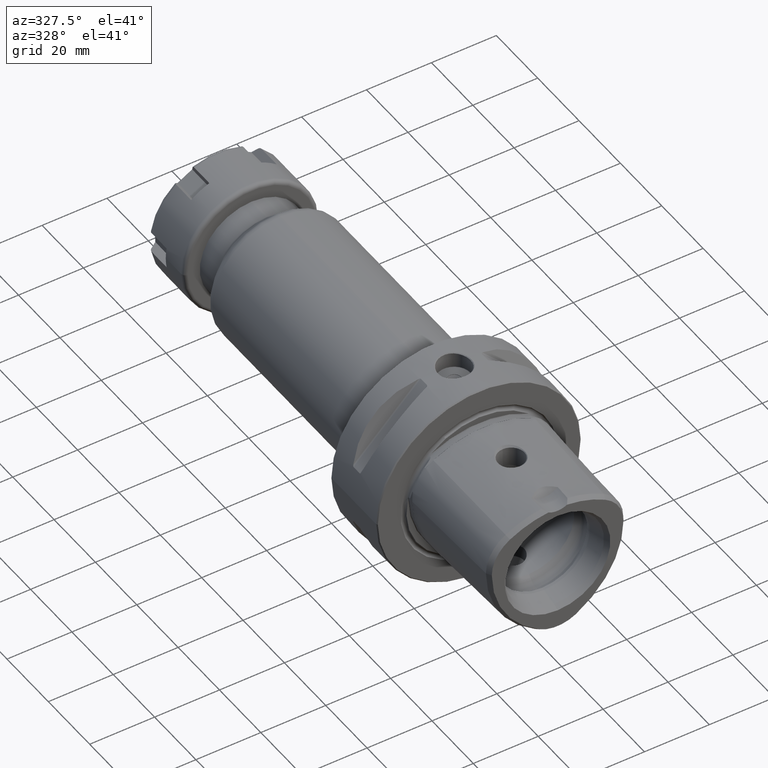
[diagram: clean part render]
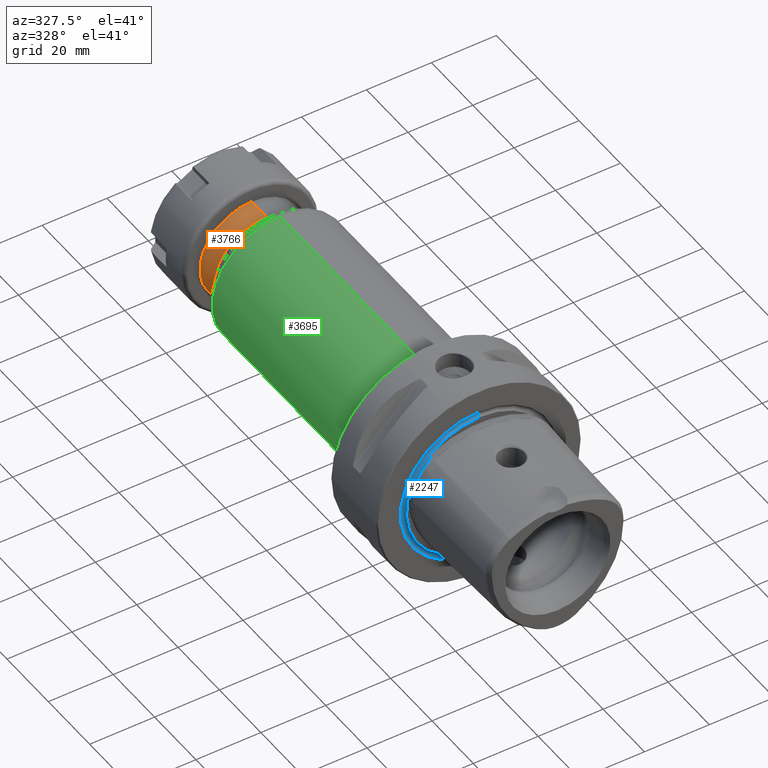
[diagram: same view with three faces highlighted in distinct colors, each labeled with its STEP entity id]
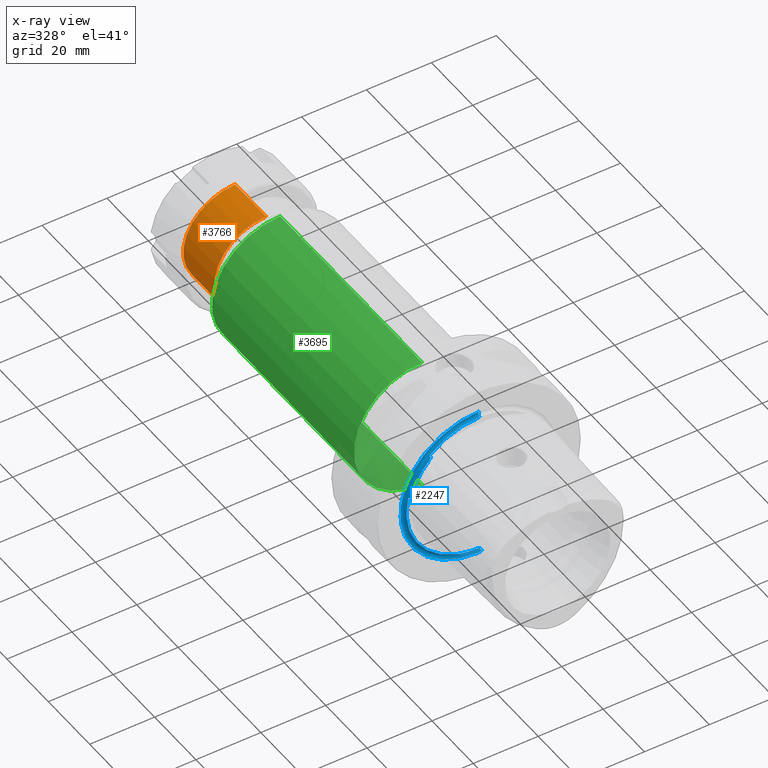
[diagram: x-ray of the same camera — body ghosted, the three highlighted faces saturated]
A machine part, auxiliary view with three faces highlighted in distinct colors.
The next image is the same camera in x-ray (body ghosted, the three faces saturated) — at least one of them is partly hidden behind the body in this view.
Their STEP definitions:

[orange] entity #3766 — the highlighted cylindrical surface (partial cylindrical patch) has radius 16 mm, axis along (0, 1, 0).
#1685=CARTESIAN_POINT('',(0.E0,1.029142135624E2,0.E0));
#1686=DIRECTION('',(0.E0,1.E0,0.E0));
#1687=DIRECTION('',(0.E0,0.E0,-1.E0));
#1688=AXIS2_PLACEMENT_3D('',#1685,#1686,#1687);
#1690=DIRECTION('',(3.382933303981E-13,-1.E0,0.E0));
#1691=VECTOR('',#1690,1.508578643763E1);
#1692=CARTESIAN_POINT('',(0.E0,1.18E2,-1.6E1));
#1693=LINE('',#1692,#1691);
#1694=CARTESIAN_POINT('',(0.E0,1.18E2,0.E0));
#1695=DIRECTION('',(0.E0,-1.E0,0.E0));
#1696=DIRECTION('',(0.E0,0.E0,1.E0));
#1697=AXIS2_PLACEMENT_3D('',#1694,#1695,#1696);
#1699=DIRECTION('',(-3.384444722266E-13,-1.E0,0.E0));
#1700=VECTOR('',#1699,1.508578643763E1);
#1701=CARTESIAN_POINT('',(0.E0,1.18E2,1.6E1));
#1702=LINE('',#1701,#1700);
#2138=CARTESIAN_POINT('',(0.E0,1.18E2,1.6E1));
#2139=CARTESIAN_POINT('',(0.E0,1.18E2,-1.6E1));
#2140=VERTEX_POINT('',#2138);
#2141=VERTEX_POINT('',#2139);
#2154=CARTESIAN_POINT('',(0.E0,1.029142135624E2,-1.6E1));
#2155=CARTESIAN_POINT('',(0.E0,1.029142135624E2,1.6E1));
#2156=VERTEX_POINT('',#2154);
#2157=VERTEX_POINT('',#2155);
#3752=CARTESIAN_POINT('',(0.E0,1.72E1,0.E0));
#3753=DIRECTION('',(0.E0,1.E0,0.E0));
#3754=DIRECTION('',(0.E0,0.E0,-1.E0));
#3755=AXIS2_PLACEMENT_3D('',#3752,#3753,#3754);
#3756=CYLINDRICAL_SURFACE('',#3755,1.6E1);
#3757=ORIENTED_EDGE('',*,*,#3746,.F.);
#3759=ORIENTED_EDGE('',*,*,#3758,.F.);
#3761=ORIENTED_EDGE('',*,*,#3760,.F.);
#3763=ORIENTED_EDGE('',*,*,#3762,.T.);
#3764=EDGE_LOOP('',(#3757,#3759,#3761,#3763));
#3765=FACE_OUTER_BOUND('',#3764,.F.);
#3766=ADVANCED_FACE('',(#3765),#3756,.T.);
#1689=CIRCLE('',#1688,1.6E1);
#1698=CIRCLE('',#1697,1.6E1);
#3746=EDGE_CURVE('',#2156,#2157,#1689,.T.);
#3758=EDGE_CURVE('',#2141,#2156,#1693,.T.);
#3760=EDGE_CURVE('',#2140,#2141,#1698,.T.);
#3762=EDGE_CURVE('',#2140,#2157,#1702,.T.);

[blue] entity #2247 — the highlighted toroidal blend (fillet) surface has major radius 23.45 mm and minor (blend) radius 1 mm.
#1=CARTESIAN_POINT('',(0.E0,-2.E-1,0.E0));
#2=DIRECTION('',(0.E0,-1.E0,0.E0));
#3=DIRECTION('',(0.E0,0.E0,1.E0));
#4=AXIS2_PLACEMENT_3D('',#1,#2,#3);
#16=CARTESIAN_POINT('',(0.E0,-2.E-1,0.E0));
#17=DIRECTION('',(0.E0,-1.E0,0.E0));
#18=DIRECTION('',(-9.790483928724E-1,0.E0,2.036277103291E-1));
#19=AXIS2_PLACEMENT_3D('',#16,#17,#18);
#36=CARTESIAN_POINT('',(-2.186535571680E1,-3.949768888776E-1,5.182950453144E0));
#37=CARTESIAN_POINT('',(-2.186447666442E1,-4.285219770169E-1,5.156193520846E0));
#38=CARTESIAN_POINT('',(-2.186267051385E1,-4.956858617715E-1,5.116968306410E0));
#39=CARTESIAN_POINT('',(-2.185981027364E1,-6.075729291750E-1,5.105109880176E0));
#40=CARTESIAN_POINT('',(-2.185735368805E1,-7.111560290556E-1,5.144314478128E0));
#41=CARTESIAN_POINT('',(-2.185511331667E1,-8.055237990934E-1,5.220625210186E0));
#42=CARTESIAN_POINT('',(-2.185290263180E1,-8.883103095720E-1,5.321191048329E0));
#43=CARTESIAN_POINT('',(-2.185055222068E1,-9.600478737447E-1,5.434510044707E0));
#44=CARTESIAN_POINT('',(-2.184783797316E1,-1.025045568227E0,5.559363903490E0));
#45=CARTESIAN_POINT('',(-2.184448365474E1,-1.086677413966E0,5.699061876387E0));
#46=CARTESIAN_POINT('',(-2.184028178887E1,-1.145343261433E0,5.853302776207E0));
#47=CARTESIAN_POINT('',(-2.183496816796E1,-1.201726492982E0,6.023307362410E0));
#48=CARTESIAN_POINT('',(-2.182825771221E1,-1.255908519550E0,6.209682775155E0));
#49=CARTESIAN_POINT('',(-2.182267438343E1,-1.290339718657E0,6.344472465364E0));
#50=CARTESIAN_POINT('',(-2.181955250733E1,-1.307106781187E0,6.414539760739E0));
#52=CARTESIAN_POINT('',(-2.186535571680E1,-3.949768888776E-1,5.182950453144E0));
#53=CARTESIAN_POINT('',(-2.186566423841E1,-3.832035467105E-1,5.192341351686E0));
#54=CARTESIAN_POINT('',(-2.186792545950E1,-3.607067491620E-1,5.204771468582E0));
#55=CARTESIAN_POINT('',(-2.188033287057E1,-3.205098041944E-1,5.199326563464E0));
#56=CARTESIAN_POINT('',(-2.189724157416E1,-2.901159892785E-1,5.169234330037E0));
#57=CARTESIAN_POINT('',(-2.191457621560E1,-2.675089536248E-1,5.129206754629E0));
#58=CARTESIAN_POINT('',(-2.193231494059E1,-2.497145708950E-1,5.081681664776E0));
#59=CARTESIAN_POINT('',(-2.195029587455E1,-2.354496274846E-1,5.028045414150E0));
#60=CARTESIAN_POINT('',(-2.196855960945E1,-2.239607407025E-1,4.968524543027E0));
#61=CARTESIAN_POINT('',(-2.198705628236E1,-2.148569028663E-1,4.903305565809E0));
#62=CARTESIAN_POINT('',(-2.200594561915E1,-2.079206638082E-1,4.831638045446E0));
#63=CARTESIAN_POINT('',(-2.202459828400E1,-2.030772469709E-1,4.755414492455E0));
#64=CARTESIAN_POINT('',(-2.204527492012E1,-2.002662850799E-1,4.666153698574E0));
#65=CARTESIAN_POINT('',(-2.205465550051E1,-1.999489322461E-1,4.617986446493E0));
#66=CARTESIAN_POINT('',(-2.206217646582E1,-2.000013402356E-1,4.581543887177E0));
#68=CARTESIAN_POINT('',(-7.062898389039E0,-2.000013335964E-1,
-2.139732714916E1));
#69=CARTESIAN_POINT('',(-7.025508089311E0,-1.999459776530E-1,
-2.140971840522E1));
#70=CARTESIAN_POINT('',(-6.973631747589E0,-2.003562489837E-1,
-2.142741897881E1));
#71=CARTESIAN_POINT('',(-6.879545672068E0,-2.037381456427E-1,
-2.145591263535E1));
#72=CARTESIAN_POINT('',(-6.798637301326E0,-2.095274155277E-1,
-2.147915835540E1));
#73=CARTESIAN_POINT('',(-6.722555351784E0,-2.178224689202E-1,
-2.149941242890E1));
#74=CARTESIAN_POINT('',(-6.653159222283E0,-2.287670523476E-1,
-2.151631464774E1));
#75=CARTESIAN_POINT('',(-6.589795155107E0,-2.427216334969E-1,
-2.153007157413E1));
#76=CARTESIAN_POINT('',(-6.532631705618E0,-2.604034810104E-1,
-2.154057551797E1));
#77=CARTESIAN_POINT('',(-6.482911658530E0,-2.831271671681E-1,
-2.154730019263E1));
#78=CARTESIAN_POINT('',(-6.441767456476E0,-3.138352963445E-1,
-2.154931282662E1));
#79=CARTESIAN_POINT('',(-6.425366517257E0,-3.573814318794E-1,
-2.154170815586E1));
#80=CARTESIAN_POINT('',(-6.435301856957E0,-3.819776685883E-1,
-2.153290810258E1));
#81=CARTESIAN_POINT('',(-6.444111099421E0,-3.949768888777E-1,
-2.152742874010E1));
#83=CARTESIAN_POINT('',(-5.354621867281E0,-1.307106781187E0,-2.210355665093E1));
#84=CARTESIAN_POINT('',(-5.429007633890E0,-1.287068046528E0,-2.206491823320E1));
#85=CARTESIAN_POINT('',(-5.569805015026E0,-1.245939004004E0,-2.199110400479E1));
#86=CARTESIAN_POINT('',(-5.756886087455E0,-1.182071632523E0,-2.189153950925E1));
#87=CARTESIAN_POINT('',(-5.922085675370E0,-1.116106813176E0,-2.180252061246E1));
#88=CARTESIAN_POINT('',(-6.068019337822E0,-1.047407575174E0,-2.172310074198E1));
#89=CARTESIAN_POINT('',(-6.195313072776E0,-9.754901265815E-1,
-2.165333024031E1));
#90=CARTESIAN_POINT('',(-6.302904796527E0,-9.006351195329E-1,
-2.159415570690E1));
#91=CARTESIAN_POINT('',(-6.394698526112E0,-8.183394305424E-1,
-2.154376315102E1));
#92=CARTESIAN_POINT('',(-6.467723812949E0,-7.226246158754E-1,
-2.150424779483E1));
#93=CARTESIAN_POINT('',(-6.507786061038E0,-6.159829609908E-1,
-2.148402372926E1));
#94=CARTESIAN_POINT('',(-6.502218321340E0,-5.022273369906E-1,
-2.149057768720E1));
#95=CARTESIAN_POINT('',(-6.468326004783E0,-4.307092336693E-1,
-2.151236703143E1));
#96=CARTESIAN_POINT('',(-6.444111099421E0,-3.949768888777E-1,
-2.152742874010E1));
#98=CARTESIAN_POINT('',(0.E0,-6.E-1,-2.345E1));
#99=DIRECTION('',(1.E0,0.E0,0.E0));
#100=DIRECTION('',(0.E0,6.E-1,-8.E-1));
#101=AXIS2_PLACEMENT_3D('',#98,#99,#100);
#103=CARTESIAN_POINT('',(0.E0,-6.E-1,2.345E1));
#104=DIRECTION('',(-1.E0,0.E0,0.E0));
#105=DIRECTION('',(0.E0,6.E-1,8.E-1));
#106=AXIS2_PLACEMENT_3D('',#103,#104,#105);
#108=CARTESIAN_POINT('',(-1.499917965734E1,-2.000013335964E-1,
1.681531295076E1));
#109=CARTESIAN_POINT('',(-1.502860594972E1,-1.999459776531E-1,
1.678912762937E1));
#110=CARTESIAN_POINT('',(-1.506987331442E1,-2.003562489835E-1,
1.675305176409E1));
#111=CARTESIAN_POINT('',(-1.514159256353E1,-2.037381456428E-1,
1.668581762958E1));
#112=CARTESIAN_POINT('',(-1.520217813810E1,-2.095274155276E-1,
1.662737179353E1));
#113=CARTESIAN_POINT('',(-1.525775965369E1,-2.178224689201E-1,
1.657160992697E1));
#114=CARTESIAN_POINT('',(-1.530709546970E1,-2.287670523475E-1,
1.651996222592E1));
#115=CARTESIAN_POINT('',(-1.535069135092E1,-2.427216334968E-1,
1.647196579709E1));
#116=CARTESIAN_POINT('',(-1.538836975790E1,-2.604034810103E-1,
1.642771276963E1));
#117=CARTESIAN_POINT('',(-1.541905352052E1,-2.831271671680E-1,
1.638801628309E1));
#118=CARTESIAN_POINT('',(-1.544136861371E1,-3.138352963443E-1,
1.635339067589E1));
#119=CARTESIAN_POINT('',(-1.544298324525E1,-3.573814318794E-1,
1.633538471050E1));
#120=CARTESIAN_POINT('',(-1.543039450571E1,-3.819776685882E-1,
1.633958894043E1));
#121=CARTESIAN_POINT('',(-1.542124461738E1,-3.949768888777E-1,
1.634447828696E1));
#123=CARTESIAN_POINT('',(-1.646493064005E1,-1.307106781187E0,1.568901689019E1));
#124=CARTESIAN_POINT('',(-1.639427590544E1,-1.287068046528E0,1.573411764489E1));
#125=CARTESIAN_POINT('',(-1.625995221790E1,-1.245939004004E0,1.581914463953E1));
#126=CARTESIAN_POINT('',(-1.608018629923E1,-1.182071632523E0,1.593137935305E1));
#127=CARTESIAN_POINT('',(-1.592049387924E1,-1.116106813176E0,1.602993694449E1));
#128=CARTESIAN_POINT('',(-1.577874742261E1,-1.047407575174E0,1.611660926820E1));
#129=CARTESIAN_POINT('',(-1.565467752825E1,-9.754901265814E-1,
1.619196362558E1));
#130=CARTESIAN_POINT('',(-1.554963501719E1,-9.006351195330E-1,
1.625555352488E1));
#131=CARTESIAN_POINT('',(-1.546009691884E1,-8.183394305421E-1,
1.630985294867E1));
#132=CARTESIAN_POINT('',(-1.538936297313E1,-7.226246158752E-1,
1.635333702409E1));
#133=CARTESIAN_POINT('',(-1.535181729453E1,-6.159829609907E-1,
1.637791991588E1));
#134=CARTESIAN_POINT('',(-1.536027705845E1,-5.022273369899E-1,
1.637637509083E1));
#135=CARTESIAN_POINT('',(-1.539609334236E1,-4.307092336691E-1,
1.635791815581E1));
#136=CARTESIAN_POINT('',(-1.542124461738E1,-3.949768888777E-1,
1.634447828696E1));
#143=CARTESIAN_POINT('',(-2.181955250733E1,-1.307106781187E0,6.414539760739E0));
#149=CARTESIAN_POINT('',(0.E0,-1.307106781187E0,0.E0));
#150=DIRECTION('',(0.E0,1.E0,0.E0));
#151=DIRECTION('',(-9.594009125138E-1,0.E0,2.820458988671E-1));
#152=AXIS2_PLACEMENT_3D('',#149,#150,#151);
#158=CARTESIAN_POINT('',(-1.646493064005E1,-1.307106781187E0,1.568901689019E1));
#171=CARTESIAN_POINT('',(0.E0,-1.307106781187E0,0.E0));
#172=DIRECTION('',(0.E0,1.E0,0.E0));
#173=DIRECTION('',(0.E0,0.E0,-1.E0));
#174=AXIS2_PLACEMENT_3D('',#171,#172,#173);
#180=CARTESIAN_POINT('',(-5.354621867281E0,-1.307106781187E0,
-2.210355665093E1));
#1192=CARTESIAN_POINT('',(0.E0,0.E0,0.E0));
#1193=DIRECTION('',(0.E0,-1.E0,0.E0));
#1194=DIRECTION('',(0.E0,0.E0,1.E0));
#1195=AXIS2_PLACEMENT_3D('',#1192,#1193,#1194);
#1894=CARTESIAN_POINT('',(0.E0,0.E0,-2.425E1));
#1895=CARTESIAN_POINT('',(0.E0,0.E0,2.425E1));
#1896=VERTEX_POINT('',#1894);
#1897=VERTEX_POINT('',#1895);
#1898=CARTESIAN_POINT('',(0.E0,-1.307106781187E0,-2.274289321881E1));
#1899=VERTEX_POINT('',#1898);
#1900=CARTESIAN_POINT('',(0.E0,-2.E-1,2.253348486101E1));
#1901=VERTEX_POINT('',#1900);
#2008=CARTESIAN_POINT('',(-1.500305276346E1,-2.E-1,1.680930344155E1));
#2010=VERTEX_POINT('',#2008);
#2014=VERTEX_POINT('',#158);
#2018=VERTEX_POINT('',#136);
#2023=CARTESIAN_POINT('',(-7.055757411389E0,-2.E-1,-2.139767655260E1));
#2024=CARTESIAN_POINT('',(-2.205881018207E1,-2.E-1,4.588373108007E0));
#2025=VERTEX_POINT('',#2023);
#2026=VERTEX_POINT('',#2024);
#2028=VERTEX_POINT('',#143);
#2031=VERTEX_POINT('',#180);
#2032=VERTEX_POINT('',#36);
#2033=VERTEX_POINT('',#96);
#2216=CARTESIAN_POINT('',(0.E0,-6.E-1,0.E0));
#2217=DIRECTION('',(0.E0,-1.E0,0.E0));
#2218=DIRECTION('',(0.E0,0.E0,1.E0));
#2219=AXIS2_PLACEMENT_3D('',#2216,#2217,#2218);
#2220=TOROIDAL_SURFACE('',#2219,2.345E1,1.E0);
#2222=ORIENTED_EDGE('',*,*,#2221,.F.);
#2224=ORIENTED_EDGE('',*,*,#2223,.T.);
#2225=ORIENTED_EDGE('',*,*,#2197,.T.);
#2227=ORIENTED_EDGE('',*,*,#2226,.T.);
#2229=ORIENTED_EDGE('',*,*,#2228,.F.);
#2231=ORIENTED_EDGE('',*,*,#2230,.F.);
#2233=ORIENTED_EDGE('',*,*,#2232,.F.);
#2235=ORIENTED_EDGE('',*,*,#2234,.F.);
#2237=ORIENTED_EDGE('',*,*,#2236,.T.);
#2238=ORIENTED_EDGE('',*,*,#2183,.T.);
#2240=ORIENTED_EDGE('',*,*,#2239,.T.);
#2242=ORIENTED_EDGE('',*,*,#2241,.F.);
#2244=ORIENTED_EDGE('',*,*,#2243,.F.);
#2245=EDGE_LOOP('',(#2222,#2224,#2225,#2227,#2229,#2231,#2233,#2235,#2237,#2238,
#2240,#2242,#2244));
#2246=FACE_OUTER_BOUND('',#2245,.F.);
#2247=ADVANCED_FACE('',(#2246),#2220,.F.);
#5=CIRCLE('',#4,2.253348486101E1);
#20=CIRCLE('',#19,2.253348486101E1);
#51=B_SPLINE_CURVE_WITH_KNOTS('',3,(#36,#37,#38,#39,#40,#41,#42,#43,#44,#45,#46,
#47,#48,#49,#50),.UNSPECIFIED.,.F.,.F.,(4,1,1,1,1,1,1,1,1,1,1,1,4),(0.E0,
8.333333333333E-2,1.666666666667E-1,2.5E-1,3.333333333333E-1,4.166666666667E-1,
5.E-1,5.833333333333E-1,6.666666666667E-1,7.5E-1,8.333333333333E-1,
9.166666666667E-1,1.E0),.UNSPECIFIED.);
#67=B_SPLINE_CURVE_WITH_KNOTS('',3,(#52,#53,#54,#55,#56,#57,#58,#59,#60,#61,#62,
#63,#64,#65,#66),.UNSPECIFIED.,.F.,.F.,(4,1,1,1,1,1,1,1,1,1,1,1,4),(0.E0,
8.333333333333E-2,1.666666666667E-1,2.5E-1,3.333333333333E-1,4.166666666667E-1,
5.E-1,5.833333333333E-1,6.666666666667E-1,7.5E-1,8.333333333333E-1,
9.166666666667E-1,1.E0),.UNSPECIFIED.);
#82=B_SPLINE_CURVE_WITH_KNOTS('',3,(#68,#69,#70,#71,#72,#73,#74,#75,#76,#77,#78,
#79,#80,#81),.UNSPECIFIED.,.F.,.F.,(4,1,1,1,1,1,1,1,1,1,1,4),(0.E0,
9.090909090909E-2,1.818181818182E-1,2.727272727273E-1,3.636363636364E-1,
4.545454545455E-1,5.454545454545E-1,6.363636363636E-1,7.272727272727E-1,
8.181818181818E-1,9.090909090909E-1,1.E0),.UNSPECIFIED.);
#97=B_SPLINE_CURVE_WITH_KNOTS('',3,(#83,#84,#85,#86,#87,#88,#89,#90,#91,#92,#93,
#94,#95,#96),.UNSPECIFIED.,.F.,.F.,(4,1,1,1,1,1,1,1,1,1,1,4),(0.E0,
9.090909090909E-2,1.818181818182E-1,2.727272727273E-1,3.636363636364E-1,
4.545454545455E-1,5.454545454545E-1,6.363636363636E-1,7.272727272727E-1,
8.181818181818E-1,9.090909090909E-1,1.E0),.UNSPECIFIED.);
#102=CIRCLE('',#101,1.E0);
#107=CIRCLE('',#106,1.E0);
#122=B_SPLINE_CURVE_WITH_KNOTS('',3,(#108,#109,#110,#111,#112,#113,#114,#115,
#116,#117,#118,#119,#120,#121),.UNSPECIFIED.,.F.,.F.,(4,1,1,1,1,1,1,1,1,1,1,4),(
0.E0,9.090909090909E-2,1.818181818182E-1,2.727272727273E-1,3.636363636364E-1,
4.545454545455E-1,5.454545454545E-1,6.363636363636E-1,7.272727272727E-1,
8.181818181818E-1,9.090909090909E-1,1.E0),.UNSPECIFIED.);
#137=B_SPLINE_CURVE_WITH_KNOTS('',3,(#123,#124,#125,#126,#127,#128,#129,#130,
#131,#132,#133,#134,#135,#136),.UNSPECIFIED.,.F.,.F.,(4,1,1,1,1,1,1,1,1,1,1,4),(
0.E0,9.090909090909E-2,1.818181818182E-1,2.727272727273E-1,3.636363636364E-1,
4.545454545455E-1,5.454545454545E-1,6.363636363636E-1,7.272727272727E-1,
8.181818181818E-1,9.090909090909E-1,1.E0),.UNSPECIFIED.);
#153=CIRCLE('',#152,2.274289321881E1);
#175=CIRCLE('',#174,2.274289321881E1);
#1196=CIRCLE('',#1195,2.425E1);
#2183=EDGE_CURVE('',#1901,#2010,#5,.T.);
#2197=EDGE_CURVE('',#2026,#2025,#20,.T.);
#2221=EDGE_CURVE('',#2032,#2028,#51,.T.);
#2223=EDGE_CURVE('',#2032,#2026,#67,.T.);
#2226=EDGE_CURVE('',#2025,#2033,#82,.T.);
#2228=EDGE_CURVE('',#2031,#2033,#97,.T.);
#2230=EDGE_CURVE('',#1899,#2031,#175,.T.);
#2232=EDGE_CURVE('',#1896,#1899,#102,.T.);
#2234=EDGE_CURVE('',#1897,#1896,#1196,.T.);
#2236=EDGE_CURVE('',#1897,#1901,#107,.T.);
#2239=EDGE_CURVE('',#2010,#2018,#122,.T.);
#2241=EDGE_CURVE('',#2014,#2018,#137,.T.);
#2243=EDGE_CURVE('',#2028,#2014,#153,.T.);

[green] entity #3695 — the highlighted cylindrical surface (partial cylindrical patch) has radius 21 mm, axis along (0, 1, 0).
#1629=CARTESIAN_POINT('',(0.E0,9.625735931288E1,0.E0));
#1630=DIRECTION('',(0.E0,-1.E0,0.E0));
#1631=DIRECTION('',(0.E0,0.E0,1.E0));
#1632=AXIS2_PLACEMENT_3D('',#1629,#1630,#1631);
#1634=DIRECTION('',(2.710765449749E-13,-1.E0,0.E0));
#1635=VECTOR('',#1634,6.875735931288E1);
#1636=CARTESIAN_POINT('',(-9.102916535848E-14,9.625735931288E1,2.1E1));
#1637=LINE('',#1636,#1635);
#1638=CARTESIAN_POINT('',(0.E0,2.75E1,0.E0));
#1639=DIRECTION('',(0.E0,1.E0,0.E0));
#1640=DIRECTION('',(0.E0,0.E0,-1.E0));
#1641=AXIS2_PLACEMENT_3D('',#1638,#1639,#1640);
#1643=DIRECTION('',(-2.711115816367E-13,-1.E0,0.E0));
#1644=VECTOR('',#1643,6.875735931288E1);
#1645=CARTESIAN_POINT('',(9.036664126634E-14,9.625735931288E1,-2.1E1));
#1646=LINE('',#1645,#1644);
#2146=CARTESIAN_POINT('',(0.E0,2.75E1,-2.1E1));
#2147=CARTESIAN_POINT('',(0.E0,2.75E1,2.1E1));
#2148=VERTEX_POINT('',#2146);
#2149=VERTEX_POINT('',#2147);
#2158=CARTESIAN_POINT('',(0.E0,9.625735931288E1,2.1E1));
#2159=CARTESIAN_POINT('',(0.E0,9.625735931288E1,-2.1E1));
#2160=VERTEX_POINT('',#2158);
#2161=VERTEX_POINT('',#2159);
#3684=CARTESIAN_POINT('',(0.E0,1.72E1,0.E0));
#3685=DIRECTION('',(0.E0,1.E0,0.E0));
#3686=DIRECTION('',(0.E0,0.E0,-1.E0));
#3687=AXIS2_PLACEMENT_3D('',#3684,#3685,#3686);
#3688=CYLINDRICAL_SURFACE('',#3687,2.1E1);
#3689=ORIENTED_EDGE('',*,*,#3675,.F.);
#3690=ORIENTED_EDGE('',*,*,#3650,.T.);
#3691=ORIENTED_EDGE('',*,*,#3620,.F.);
#3692=ORIENTED_EDGE('',*,*,#3647,.F.);
#3693=EDGE_LOOP('',(#3689,#3690,#3691,#3692));
#3694=FACE_OUTER_BOUND('',#3693,.F.);
#3695=ADVANCED_FACE('',(#3694),#3688,.T.);
#1633=CIRCLE('',#1632,2.1E1);
#1642=CIRCLE('',#1641,2.1E1);
#3620=EDGE_CURVE('',#2148,#2149,#1642,.T.);
#3647=EDGE_CURVE('',#2161,#2148,#1646,.T.);
#3650=EDGE_CURVE('',#2160,#2149,#1637,.T.);
#3675=EDGE_CURVE('',#2160,#2161,#1633,.T.);